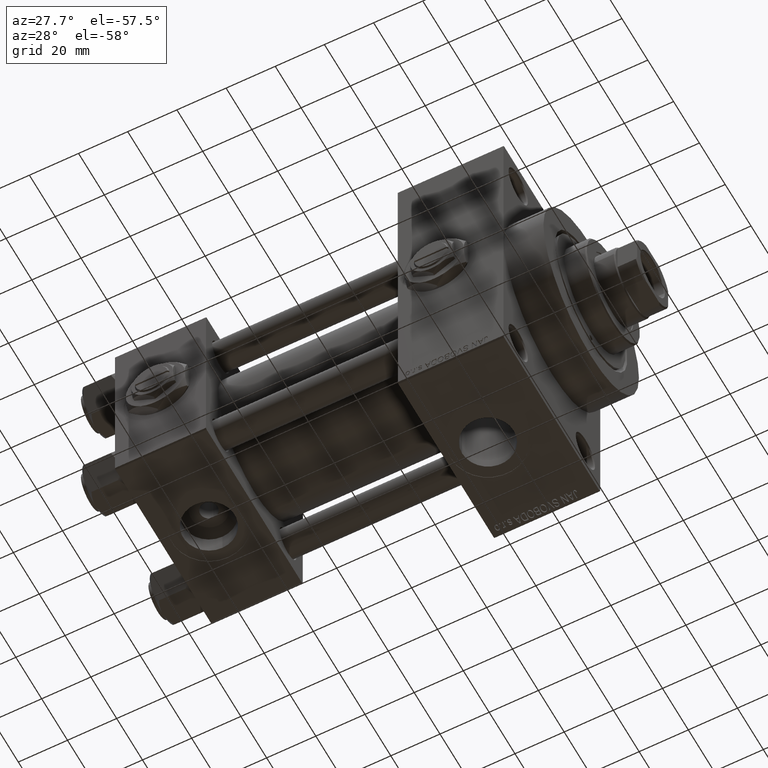
[diagram: clean part render]
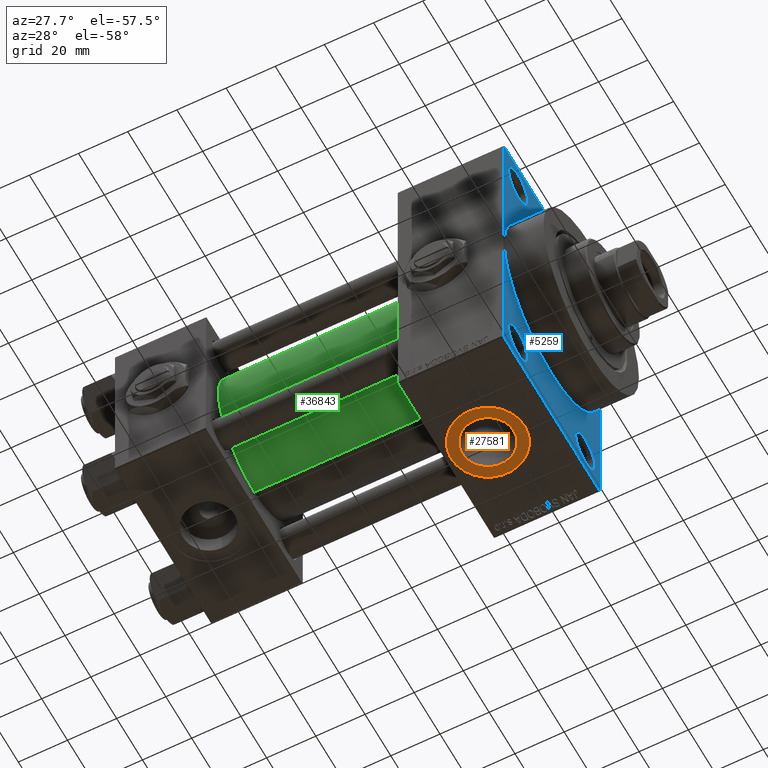
[diagram: same view with three faces highlighted in distinct colors, each labeled with its STEP entity id]
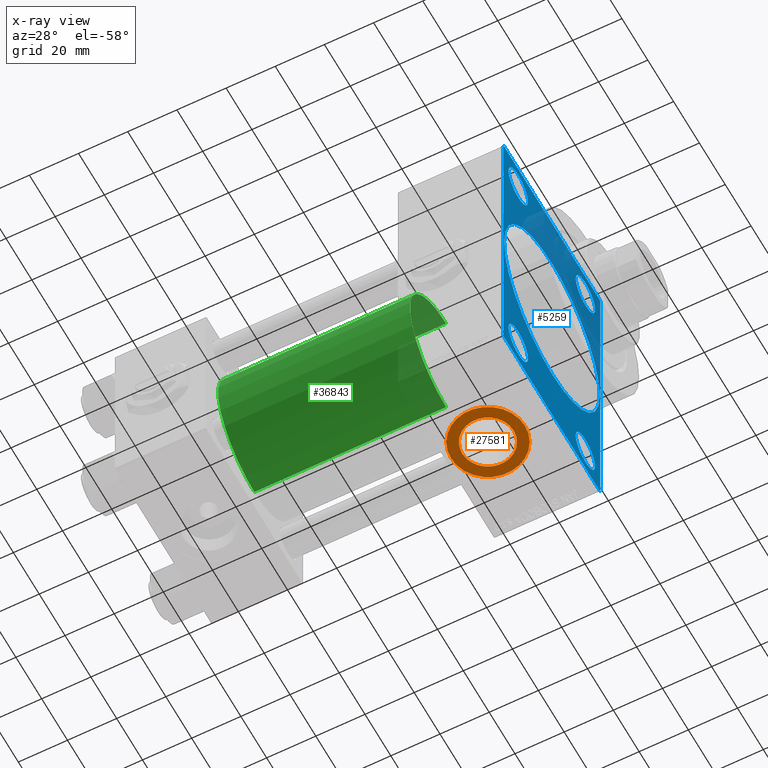
[diagram: x-ray of the same camera — body ghosted, the three highlighted faces saturated]
A machine part, auxiliary view with three faces highlighted in distinct colors.
The next image is the same camera in x-ray (body ghosted, the three faces saturated) — at least one of them is partly hidden behind the body in this view.
Their STEP definitions:

[orange] entity #27581 — the highlighted planar face has unit normal (0, 0, -1).
#1244 = FACE_BOUND ( 'NONE', #2321, .T. ) ;
#1738 = ORIENTED_EDGE ( 'NONE', *, *, #7679, .F. ) ;
#1769 = EDGE_CURVE ( 'NONE', #37376, #21245, #23934, .T. ) ;
#2321 = EDGE_LOOP ( 'NONE', ( #1738, #46386 ) ) ;
#5096 = AXIS2_PLACEMENT_3D ( 'NONE', #43416, #45988, #19202 ) ;
#6236 = ORIENTED_EDGE ( 'NONE', *, *, #31553, .T. ) ;
#7482 = CARTESIAN_POINT ( 'NONE',  ( 132.0000000000000000, 1.184237892933500520E-14, -63.79999999999999716 ) ) ;
#7679 = EDGE_CURVE ( 'NONE', #37139, #48341, #23243, .T. ) ;
#8519 = FACE_OUTER_BOUND ( 'NONE', #41853, .T. ) ;
#9259 = DIRECTION ( 'NONE',  ( -1.000000000000000000, 0.000000000000000000, -0.000000000000000000 ) ) ;
#10027 = DIRECTION ( 'NONE',  ( -1.000000000000000000, 0.000000000000000000, 0.000000000000000000 ) ) ;
#10737 = DIRECTION ( 'NONE',  ( -1.000000000000000000, 0.000000000000000000, 0.000000000000000000 ) ) ;
#13398 = CARTESIAN_POINT ( 'NONE',  ( 117.0000000000000000, 1.184237892933500520E-14, -63.79999999999999716 ) ) ;
#14945 = DIRECTION ( 'NONE',  ( 0.000000000000000000, 0.000000000000000000, -1.000000000000000000 ) ) ;
#15179 = CARTESIAN_POINT ( 'NONE',  ( 121.5199999999999960, 1.184237892933500520E-14, -63.79999999999999716 ) ) ;
#15234 = CIRCLE ( 'NONE', #23225, 10.48000000000000398 ) ;
#15728 = CARTESIAN_POINT ( 'NONE',  ( 142.4799999999999898, 1.312580877484143385E-14, -63.79999999999999716 ) ) ;
#16527 = DIRECTION ( 'NONE',  ( 0.000000000000000000, 0.000000000000000000, -1.000000000000000000 ) ) ;
#16773 = CARTESIAN_POINT ( 'NONE',  ( 132.0000000000000000, 1.184237892933500520E-14, -63.79999999999999716 ) ) ;
#16787 = AXIS2_PLACEMENT_3D ( 'NONE', #22199, #14945, #26710 ) ;
#17791 = CARTESIAN_POINT ( 'NONE',  ( 132.0000000000000000, 1.184237892933500520E-14, -63.79999999999999716 ) ) ;
#19202 = DIRECTION ( 'NONE',  ( -1.000000000000000000, 0.000000000000000000, 0.000000000000000000 ) ) ;
#21245 = VERTEX_POINT ( 'NONE', #26646 ) ;
#21942 = EDGE_CURVE ( 'NONE', #48341, #37139, #15234, .T. ) ;
#22199 = CARTESIAN_POINT ( 'NONE',  ( 132.0000000000000000, 1.184237892933500520E-14, -63.79999999999999716 ) ) ;
#23225 = AXIS2_PLACEMENT_3D ( 'NONE', #17791, #44316, #10027 ) ;
#23243 = CIRCLE ( 'NONE', #24834, 10.48000000000000398 ) ;
#23768 = PLANE ( 'NONE',  #25697 ) ;
#23934 = CIRCLE ( 'NONE', #16787, 15.00000000000000000 ) ;
#24834 = AXIS2_PLACEMENT_3D ( 'NONE', #7482, #41510, #10737 ) ;
#25697 = AXIS2_PLACEMENT_3D ( 'NONE', #16773, #16527, #9259 ) ;
#26646 = CARTESIAN_POINT ( 'NONE',  ( 147.0000000000000284, 1.367934912805603242E-14, -63.79999999999999716 ) ) ;
#26710 = DIRECTION ( 'NONE',  ( -1.000000000000000000, 0.000000000000000000, 0.000000000000000000 ) ) ;
#27581 = ADVANCED_FACE ( 'NONE', ( #1244, #8519 ), #23768, .T. ) ;
#31553 = EDGE_CURVE ( 'NONE', #21245, #37376, #44248, .T. ) ;
#37139 = VERTEX_POINT ( 'NONE', #15179 ) ;
#37376 = VERTEX_POINT ( 'NONE', #13398 ) ;
#41510 = DIRECTION ( 'NONE',  ( 0.000000000000000000, 0.000000000000000000, -1.000000000000000000 ) ) ;
#41853 = EDGE_LOOP ( 'NONE', ( #45460, #6236 ) ) ;
#43416 = CARTESIAN_POINT ( 'NONE',  ( 132.0000000000000000, 1.184237892933500520E-14, -63.79999999999999716 ) ) ;
#44248 = CIRCLE ( 'NONE', #5096, 15.00000000000000000 ) ;
#44316 = DIRECTION ( 'NONE',  ( 0.000000000000000000, 0.000000000000000000, -1.000000000000000000 ) ) ;
#45460 = ORIENTED_EDGE ( 'NONE', *, *, #1769, .T. ) ;
#45988 = DIRECTION ( 'NONE',  ( 0.000000000000000000, 0.000000000000000000, -1.000000000000000000 ) ) ;
#46386 = ORIENTED_EDGE ( 'NONE', *, *, #21942, .F. ) ;
#48341 = VERTEX_POINT ( 'NONE', #15728 ) ;

[blue] entity #5259 — the highlighted planar face has unit normal (-1, 0, 0).
#132 = ORIENTED_EDGE ( 'NONE', *, *, #12311, .T. ) ;
#359 = FACE_BOUND ( 'NONE', #31983, .T. ) ;
#953 = CARTESIAN_POINT ( 'NONE',  ( 157.9999999999999716, -25.99999999999999645, 52.50000000000000000 ) ) ;
#954 = ORIENTED_EDGE ( 'NONE', *, *, #30977, .T. ) ;
#1000 = LINE ( 'NONE', #46565, #5741 ) ;
#1012 = ORIENTED_EDGE ( 'NONE', *, *, #20038, .T. ) ;
#1110 = CIRCLE ( 'NONE', #33061, 37.00000000000000000 ) ;
#1150 = VERTEX_POINT ( 'NONE', #8354 ) ;
#1183 = LINE ( 'NONE', #19958, #8133 ) ;
#1385 = CARTESIAN_POINT ( 'NONE',  ( 157.9999999999999716, 37.00000000000000000, 63.99999999999998579 ) ) ;
#1582 = CIRCLE ( 'NONE', #3174, 7.499999999999951150 ) ;
#2215 = CARTESIAN_POINT ( 'NONE',  ( 157.9999999999999716, -37.49999999999999289, 63.49999999999997158 ) ) ;
#2356 = DIRECTION ( 'NONE',  ( -1.000000000000000000, 0.000000000000000000, -0.000000000000000000 ) ) ;
#2929 = CARTESIAN_POINT ( 'NONE',  ( 157.9999999999999716, 0.000000000000000000, 0.000000000000000000 ) ) ;
#3139 = AXIS2_PLACEMENT_3D ( 'NONE', #7129, #38401, #34659 ) ;
#3174 = AXIS2_PLACEMENT_3D ( 'NONE', #16581, #12069, #23817 ) ;
#3249 = AXIS2_PLACEMENT_3D ( 'NONE', #953, #43747, #24968 ) ;
#3473 = EDGE_LOOP ( 'NONE', ( #25241, #26985 ) ) ;
#3839 = AXIS2_PLACEMENT_3D ( 'NONE', #15141, #41185, #14159 ) ;
#4256 = VECTOR ( 'NONE', #36178, 1000.000000000000114 ) ;
#4365 = FACE_BOUND ( 'NONE', #41347, .T. ) ;
#4880 = VERTEX_POINT ( 'NONE', #8190 ) ;
#5234 = DIRECTION ( 'NONE',  ( 0.000000000000000000, 0.7071067811865378028, -0.7071067811865573427 ) ) ;
#5259 = ADVANCED_FACE ( 'NONE', ( #359, #14886, #30161, #4365, #38665, #26391 ), #22633, .F. ) ;
#5741 = VECTOR ( 'NONE', #32039, 1000.000000000000000 ) ;
#5831 = CARTESIAN_POINT ( 'NONE',  ( 157.9999999999999716, 0.000000000000000000, 37.00000000000000000 ) ) ;
#6864 = VERTEX_POINT ( 'NONE', #41688 ) ;
#6962 = CARTESIAN_POINT ( 'NONE',  ( 157.9999999999999716, 26.00000000000000000, -59.99999999999994316 ) ) ;
#7129 = CARTESIAN_POINT ( 'NONE',  ( 157.9999999999999716, 0.000000000000000000, 0.000000000000000000 ) ) ;
#7229 = VECTOR ( 'NONE', #12902, 1000.000000000000114 ) ;
#7927 = EDGE_CURVE ( 'NONE', #28235, #18369, #40851, .T. ) ;
#8133 = VECTOR ( 'NONE', #23461, 1000.000000000000000 ) ;
#8190 = CARTESIAN_POINT ( 'NONE',  ( 157.9999999999999716, -37.49999999999999289, -63.49999999999997158 ) ) ;
#8191 = EDGE_CURVE ( 'NONE', #27382, #11653, #19256, .T. ) ;
#8354 = CARTESIAN_POINT ( 'NONE',  ( 157.9999999999999716, -36.99999999999998579, 63.99999999999997158 ) ) ;
#8638 = LINE ( 'NONE', #46687, #33752 ) ;
#10127 = DIRECTION ( 'NONE',  ( 0.000000000000000000, 0.000000000000000000, 1.000000000000000000 ) ) ;
#11653 = VERTEX_POINT ( 'NONE', #44041 ) ;
#11950 = EDGE_CURVE ( 'NONE', #11653, #27382, #37806, .T. ) ;
#12052 = DIRECTION ( 'NONE',  ( 0.000000000000000000, 0.000000000000000000, 1.000000000000000000 ) ) ;
#12069 = DIRECTION ( 'NONE',  ( -1.000000000000000000, 0.000000000000000000, -0.000000000000000000 ) ) ;
#12311 = EDGE_CURVE ( 'NONE', #29348, #19891, #24154, .T. ) ;
#12415 = CIRCLE ( 'NONE', #41989, 7.499999999999951150 ) ;
#12902 = DIRECTION ( 'NONE',  ( -0.000000000000000000, 0.7071067811865376918, 0.7071067811865573427 ) ) ;
#13335 = EDGE_CURVE ( 'NONE', #19207, #49091, #1110, .T. ) ;
#13561 = CARTESIAN_POINT ( 'NONE',  ( 157.9999999999999716, -25.99999999999999645, 59.99999999999995026 ) ) ;
#14159 = DIRECTION ( 'NONE',  ( 0.000000000000000000, 0.000000000000000000, -1.000000000000000000 ) ) ;
#14886 = FACE_BOUND ( 'NONE', #41781, .T. ) ;
#15141 = CARTESIAN_POINT ( 'NONE',  ( 157.9999999999999716, 0.000000000000000000, 0.000000000000000000 ) ) ;
#15569 = DIRECTION ( 'NONE',  ( -1.000000000000000000, 0.000000000000000000, -0.000000000000000000 ) ) ;
#15677 = CARTESIAN_POINT ( 'NONE',  ( 157.9999999999999716, -25.99999999999999645, -52.49999999999999289 ) ) ;
#15812 = CARTESIAN_POINT ( 'NONE',  ( 157.9999999999999716, 26.00000000000000000, 45.00000000000004263 ) ) ;
#16178 = LINE ( 'NONE', #47195, #7229 ) ;
#16292 = ORIENTED_EDGE ( 'NONE', *, *, #38955, .T. ) ;
#16376 = DIRECTION ( 'NONE',  ( 0.000000000000000000, 0.000000000000000000, 1.000000000000000000 ) ) ;
#16581 = CARTESIAN_POINT ( 'NONE',  ( 157.9999999999999716, 26.00000000000000000, -52.49999999999999289 ) ) ;
#16828 = CARTESIAN_POINT ( 'NONE',  ( 157.9999999999999716, 26.00000000000000000, -45.00000000000004263 ) ) ;
#17713 = DIRECTION ( 'NONE',  ( -0.000000000000000000, -0.7071067811865525687, -0.7071067811865425767 ) ) ;
#18369 = VERTEX_POINT ( 'NONE', #38317 ) ;
#19207 = VERTEX_POINT ( 'NONE', #45656 ) ;
#19256 = CIRCLE ( 'NONE', #48852, 7.499999999999951150 ) ;
#19891 = VERTEX_POINT ( 'NONE', #25160 ) ;
#19958 = CARTESIAN_POINT ( 'NONE',  ( 157.9999999999999716, 37.50000000000000000, 63.99999999999998579 ) ) ;
#20038 = EDGE_CURVE ( 'NONE', #36609, #45621, #42356, .T. ) ;
#20613 = EDGE_CURVE ( 'NONE', #18369, #28235, #31185, .T. ) ;
#21285 = ORIENTED_EDGE ( 'NONE', *, *, #21655, .T. ) ;
#21402 = CARTESIAN_POINT ( 'NONE',  ( 157.9999999999999716, -25.99999999999999645, 52.50000000000000000 ) ) ;
#21444 = ORIENTED_EDGE ( 'NONE', *, *, #27502, .F. ) ;
#21655 = EDGE_CURVE ( 'NONE', #45621, #36609, #40788, .T. ) ;
#22633 = PLANE ( 'NONE',  #3139 ) ;
#22726 = CARTESIAN_POINT ( 'NONE',  ( 157.9999999999999716, -25.99999999999999645, -52.49999999999999289 ) ) ;
#22919 = DIRECTION ( 'NONE',  ( 0.000000000000000000, 0.000000000000000000, 1.000000000000000000 ) ) ;
#23208 = DIRECTION ( 'NONE',  ( 0.000000000000000000, 0.000000000000000000, 1.000000000000000000 ) ) ;
#23461 = DIRECTION ( 'NONE',  ( 0.000000000000000000, -1.000000000000000000, -1.850371707708594563E-16 ) ) ;
#23712 = ORIENTED_EDGE ( 'NONE', *, *, #11950, .T. ) ;
#23817 = DIRECTION ( 'NONE',  ( 0.000000000000000000, 0.000000000000000000, 1.000000000000000000 ) ) ;
#24154 = LINE ( 'NONE', #1385, #4256 ) ;
#24448 = VERTEX_POINT ( 'NONE', #16828 ) ;
#24668 = DIRECTION ( 'NONE',  ( 0.000000000000000000, 0.000000000000000000, 1.000000000000000000 ) ) ;
#24814 = VERTEX_POINT ( 'NONE', #43781 ) ;
#24968 = DIRECTION ( 'NONE',  ( 0.000000000000000000, 0.000000000000000000, 1.000000000000000000 ) ) ;
#25160 = CARTESIAN_POINT ( 'NONE',  ( 157.9999999999999716, 37.00000000000000000, 63.99999999999998579 ) ) ;
#25241 = ORIENTED_EDGE ( 'NONE', *, *, #35487, .T. ) ;
#25368 = EDGE_CURVE ( 'NONE', #45327, #6864, #8638, .T. ) ;
#25541 = CARTESIAN_POINT ( 'NONE',  ( 157.9999999999999716, -25.99999999999999645, -59.99999999999994316 ) ) ;
#26391 = FACE_OUTER_BOUND ( 'NONE', #32324, .T. ) ;
#26805 = VECTOR ( 'NONE', #17713, 999.9999999999998863 ) ;
#26985 = ORIENTED_EDGE ( 'NONE', *, *, #47018, .T. ) ;
#27236 = ORIENTED_EDGE ( 'NONE', *, *, #27919, .T. ) ;
#27382 = VERTEX_POINT ( 'NONE', #25541 ) ;
#27502 = EDGE_CURVE ( 'NONE', #29348, #24814, #1000, .T. ) ;
#27601 = ORIENTED_EDGE ( 'NONE', *, *, #25368, .F. ) ;
#27738 = EDGE_LOOP ( 'NONE', ( #32658, #44284 ) ) ;
#27802 = CIRCLE ( 'NONE', #3839, 37.00000000000000000 ) ;
#27919 = EDGE_CURVE ( 'NONE', #19891, #1150, #1183, .T. ) ;
#28235 = VERTEX_POINT ( 'NONE', #13561 ) ;
#28492 = CARTESIAN_POINT ( 'NONE',  ( 157.9999999999999716, 37.50000000000000000, 63.49999999999998579 ) ) ;
#29348 = VERTEX_POINT ( 'NONE', #28492 ) ;
#30161 = FACE_BOUND ( 'NONE', #3473, .T. ) ;
#30977 = EDGE_CURVE ( 'NONE', #43555, #4880, #35587, .T. ) ;
#31185 = CIRCLE ( 'NONE', #34358, 7.499999999999951150 ) ;
#31983 = EDGE_LOOP ( 'NONE', ( #38248, #45449 ) ) ;
#32039 = DIRECTION ( 'NONE',  ( 0.000000000000000000, -5.421010862427522170E-17, -1.000000000000000000 ) ) ;
#32324 = EDGE_LOOP ( 'NONE', ( #954, #16292, #27601, #37207, #21444, #132, #27236, #46456 ) ) ;
#32658 = ORIENTED_EDGE ( 'NONE', *, *, #42980, .F. ) ;
#32823 = AXIS2_PLACEMENT_3D ( 'NONE', #35082, #15569, #12052 ) ;
#33061 = AXIS2_PLACEMENT_3D ( 'NONE', #2929, #33473, #36368 ) ;
#33473 = DIRECTION ( 'NONE',  ( 1.000000000000000000, 0.000000000000000000, 0.000000000000000000 ) ) ;
#33752 = VECTOR ( 'NONE', #42435, 1000.000000000000000 ) ;
#34358 = AXIS2_PLACEMENT_3D ( 'NONE', #21402, #47703, #24668 ) ;
#34659 = DIRECTION ( 'NONE',  ( -0.000000000000000000, 0.000000000000000000, 1.000000000000000000 ) ) ;
#35082 = CARTESIAN_POINT ( 'NONE',  ( 157.9999999999999716, 26.00000000000000000, 52.49999999999999289 ) ) ;
#35487 = EDGE_CURVE ( 'NONE', #43679, #24448, #12415, .T. ) ;
#35587 = LINE ( 'NONE', #38844, #38606 ) ;
#35876 = DIRECTION ( 'NONE',  ( -1.000000000000000000, 0.000000000000000000, -0.000000000000000000 ) ) ;
#36175 = EDGE_CURVE ( 'NONE', #1150, #43555, #36244, .T. ) ;
#36178 = DIRECTION ( 'NONE',  ( 0.000000000000000000, -0.7071067811865474617, 0.7071067811865474617 ) ) ;
#36244 = LINE ( 'NONE', #36972, #26805 ) ;
#36368 = DIRECTION ( 'NONE',  ( 0.000000000000000000, 0.000000000000000000, -1.000000000000000000 ) ) ;
#36609 = VERTEX_POINT ( 'NONE', #49397 ) ;
#36972 = CARTESIAN_POINT ( 'NONE',  ( 157.9999999999999716, -37.49999999999999289, 63.49999999999997158 ) ) ;
#37207 = ORIENTED_EDGE ( 'NONE', *, *, #48752, .T. ) ;
#37806 = CIRCLE ( 'NONE', #48176, 7.499999999999951150 ) ;
#38248 = ORIENTED_EDGE ( 'NONE', *, *, #20613, .T. ) ;
#38317 = CARTESIAN_POINT ( 'NONE',  ( 157.9999999999999716, -25.99999999999999645, 45.00000000000004974 ) ) ;
#38401 = DIRECTION ( 'NONE',  ( -1.000000000000000000, 0.000000000000000000, -0.000000000000000000 ) ) ;
#38606 = VECTOR ( 'NONE', #46350, 1000.000000000000000 ) ;
#38665 = FACE_BOUND ( 'NONE', #27738, .T. ) ;
#38844 = CARTESIAN_POINT ( 'NONE',  ( 157.9999999999999716, -37.49999999999999289, 63.99999999999997158 ) ) ;
#38955 = EDGE_CURVE ( 'NONE', #4880, #6864, #39277, .T. ) ;
#39277 = LINE ( 'NONE', #43528, #46892 ) ;
#40788 = CIRCLE ( 'NONE', #32823, 7.499999999999951150 ) ;
#40851 = CIRCLE ( 'NONE', #3249, 7.499999999999951150 ) ;
#41185 = DIRECTION ( 'NONE',  ( 1.000000000000000000, 0.000000000000000000, 0.000000000000000000 ) ) ;
#41347 = EDGE_LOOP ( 'NONE', ( #21285, #1012 ) ) ;
#41688 = CARTESIAN_POINT ( 'NONE',  ( 157.9999999999999716, -36.99999999999996447, -64.00000000000001421 ) ) ;
#41781 = EDGE_LOOP ( 'NONE', ( #46071, #23712 ) ) ;
#41989 = AXIS2_PLACEMENT_3D ( 'NONE', #44416, #2356, #10127 ) ;
#42356 = CIRCLE ( 'NONE', #47967, 7.499999999999951150 ) ;
#42435 = DIRECTION ( 'NONE',  ( 0.000000000000000000, -1.000000000000000000, -1.850371707708594563E-16 ) ) ;
#42507 = DIRECTION ( 'NONE',  ( -1.000000000000000000, 0.000000000000000000, -0.000000000000000000 ) ) ;
#42666 = CARTESIAN_POINT ( 'NONE',  ( 157.9999999999999716, 37.00000000000002132, -64.00000000000000000 ) ) ;
#42980 = EDGE_CURVE ( 'NONE', #49091, #19207, #27802, .T. ) ;
#43139 = CARTESIAN_POINT ( 'NONE',  ( 157.9999999999999716, 26.00000000000000000, 52.49999999999999289 ) ) ;
#43528 = CARTESIAN_POINT ( 'NONE',  ( 157.9999999999999716, -36.99999999999996447, -64.00000000000001421 ) ) ;
#43555 = VERTEX_POINT ( 'NONE', #2215 ) ;
#43679 = VERTEX_POINT ( 'NONE', #6962 ) ;
#43747 = DIRECTION ( 'NONE',  ( -1.000000000000000000, 0.000000000000000000, -0.000000000000000000 ) ) ;
#43781 = CARTESIAN_POINT ( 'NONE',  ( 157.9999999999999716, 37.49999999999999289, -63.50000000000001421 ) ) ;
#44041 = CARTESIAN_POINT ( 'NONE',  ( 157.9999999999999716, -25.99999999999999645, -45.00000000000004263 ) ) ;
#44284 = ORIENTED_EDGE ( 'NONE', *, *, #13335, .F. ) ;
#44416 = CARTESIAN_POINT ( 'NONE',  ( 157.9999999999999716, 26.00000000000000000, -52.49999999999999289 ) ) ;
#45327 = VERTEX_POINT ( 'NONE', #42666 ) ;
#45449 = ORIENTED_EDGE ( 'NONE', *, *, #7927, .T. ) ;
#45621 = VERTEX_POINT ( 'NONE', #15812 ) ;
#45656 = CARTESIAN_POINT ( 'NONE',  ( 157.9999999999999716, 4.531193156845206793E-15, -37.00000000000000000 ) ) ;
#46071 = ORIENTED_EDGE ( 'NONE', *, *, #8191, .T. ) ;
#46350 = DIRECTION ( 'NONE',  ( 0.000000000000000000, 0.000000000000000000, -1.000000000000000000 ) ) ;
#46456 = ORIENTED_EDGE ( 'NONE', *, *, #36175, .T. ) ;
#46461 = DIRECTION ( 'NONE',  ( -1.000000000000000000, 0.000000000000000000, -0.000000000000000000 ) ) ;
#46565 = CARTESIAN_POINT ( 'NONE',  ( 157.9999999999999716, 37.50000000000000000, 63.99999999999998579 ) ) ;
#46687 = CARTESIAN_POINT ( 'NONE',  ( 157.9999999999999716, 37.49999999999999289, -64.00000000000000000 ) ) ;
#46892 = VECTOR ( 'NONE', #5234, 1000.000000000000000 ) ;
#47018 = EDGE_CURVE ( 'NONE', #24448, #43679, #1582, .T. ) ;
#47195 = CARTESIAN_POINT ( 'NONE',  ( 157.9999999999999716, 37.49999999999999289, -63.50000000000001421 ) ) ;
#47703 = DIRECTION ( 'NONE',  ( -1.000000000000000000, 0.000000000000000000, -0.000000000000000000 ) ) ;
#47967 = AXIS2_PLACEMENT_3D ( 'NONE', #43139, #35876, #16376 ) ;
#48176 = AXIS2_PLACEMENT_3D ( 'NONE', #22726, #42507, #23208 ) ;
#48752 = EDGE_CURVE ( 'NONE', #45327, #24814, #16178, .T. ) ;
#48852 = AXIS2_PLACEMENT_3D ( 'NONE', #15677, #46461, #22919 ) ;
#49091 = VERTEX_POINT ( 'NONE', #5831 ) ;
#49397 = CARTESIAN_POINT ( 'NONE',  ( 157.9999999999999716, 26.00000000000000000, 59.99999999999994316 ) ) ;

[green] entity #36843 — the highlighted cylindrical surface (partial cylindrical patch) has radius 28 mm, axis along (-1, -0, -0).
#1032 = ORIENTED_EDGE ( 'NONE', *, *, #9343, .F. ) ;
#2800 = CYLINDRICAL_SURFACE ( 'NONE', #45211, 28.00000000000000000 ) ;
#3348 = ORIENTED_EDGE ( 'NONE', *, *, #32592, .T. ) ;
#4978 = VECTOR ( 'NONE', #44099, 1000.000000000000000 ) ;
#6182 = VERTEX_POINT ( 'NONE', #9608 ) ;
#9024 = ORIENTED_EDGE ( 'NONE', *, *, #29903, .T. ) ;
#9343 = EDGE_CURVE ( 'NONE', #48402, #6182, #48920, .T. ) ;
#9608 = CARTESIAN_POINT ( 'NONE',  ( 114.9999999999999858, 8.269258236473784371E-16, -28.00000000000000000 ) ) ;
#11411 = EDGE_CURVE ( 'NONE', #6182, #40505, #36345, .T. ) ;
#13095 = CIRCLE ( 'NONE', #17115, 28.00000000000000000 ) ;
#14246 = EDGE_LOOP ( 'NONE', ( #37045, #1032, #9024, #3348 ) ) ;
#14807 = DIRECTION ( 'NONE',  ( -1.000000000000000000, -0.000000000000000000, -0.000000000000000000 ) ) ;
#15628 = LINE ( 'NONE', #38658, #42582 ) ;
#15892 = CARTESIAN_POINT ( 'NONE',  ( 37.00000000000000711, 8.269258236473784371E-16, -28.00000000000000000 ) ) ;
#17115 = AXIS2_PLACEMENT_3D ( 'NONE', #35484, #46501, #31480 ) ;
#20218 = CARTESIAN_POINT ( 'NONE',  ( 114.9999999999999858, -2.602085213965210642E-15, 28.00000000000000000 ) ) ;
#21825 = DIRECTION ( 'NONE',  ( 0.000000000000000000, 0.000000000000000000, 1.000000000000000000 ) ) ;
#23573 = VERTEX_POINT ( 'NONE', #45319 ) ;
#29900 = DIRECTION ( 'NONE',  ( 0.000000000000000000, 0.000000000000000000, -1.000000000000000000 ) ) ;
#29903 = EDGE_CURVE ( 'NONE', #48402, #23573, #15628, .T. ) ;
#31480 = DIRECTION ( 'NONE',  ( 0.000000000000000000, 0.000000000000000000, 1.000000000000000000 ) ) ;
#32584 = CARTESIAN_POINT ( 'NONE',  ( 114.9999999999999858, 8.269258236473784371E-16, -28.00000000000000000 ) ) ;
#32592 = EDGE_CURVE ( 'NONE', #23573, #40505, #13095, .T. ) ;
#33657 = DIRECTION ( 'NONE',  ( 1.000000000000000000, 0.000000000000000000, 0.000000000000000000 ) ) ;
#33905 = CARTESIAN_POINT ( 'NONE',  ( 114.9999999999999858, -2.602085213965210642E-15, 0.000000000000000000 ) ) ;
#35484 = CARTESIAN_POINT ( 'NONE',  ( 37.00000000000000711, -2.602085213965210642E-15, 0.000000000000000000 ) ) ;
#36345 = LINE ( 'NONE', #32584, #4978 ) ;
#36843 = ADVANCED_FACE ( 'NONE', ( #41100 ), #2800, .T. ) ;
#37045 = ORIENTED_EDGE ( 'NONE', *, *, #11411, .F. ) ;
#38658 = CARTESIAN_POINT ( 'NONE',  ( 114.9999999999999858, -2.602085213965210642E-15, 28.00000000000000000 ) ) ;
#39401 = DIRECTION ( 'NONE',  ( -1.000000000000000000, -0.000000000000000000, -0.000000000000000000 ) ) ;
#40505 = VERTEX_POINT ( 'NONE', #15892 ) ;
#41100 = FACE_OUTER_BOUND ( 'NONE', #14246, .T. ) ;
#42582 = VECTOR ( 'NONE', #39401, 1000.000000000000000 ) ;
#43321 = AXIS2_PLACEMENT_3D ( 'NONE', #33905, #33657, #29900 ) ;
#44099 = DIRECTION ( 'NONE',  ( -1.000000000000000000, -0.000000000000000000, -0.000000000000000000 ) ) ;
#44855 = CARTESIAN_POINT ( 'NONE',  ( 114.9999999999999858, -2.602085213965210642E-15, 0.000000000000000000 ) ) ;
#45211 = AXIS2_PLACEMENT_3D ( 'NONE', #44855, #14807, #21825 ) ;
#45319 = CARTESIAN_POINT ( 'NONE',  ( 37.00000000000000711, -2.602085213965210642E-15, 28.00000000000000000 ) ) ;
#46501 = DIRECTION ( 'NONE',  ( 1.000000000000000000, -0.000000000000000000, 0.000000000000000000 ) ) ;
#48402 = VERTEX_POINT ( 'NONE', #20218 ) ;
#48920 = CIRCLE ( 'NONE', #43321, 28.00000000000000000 ) ;